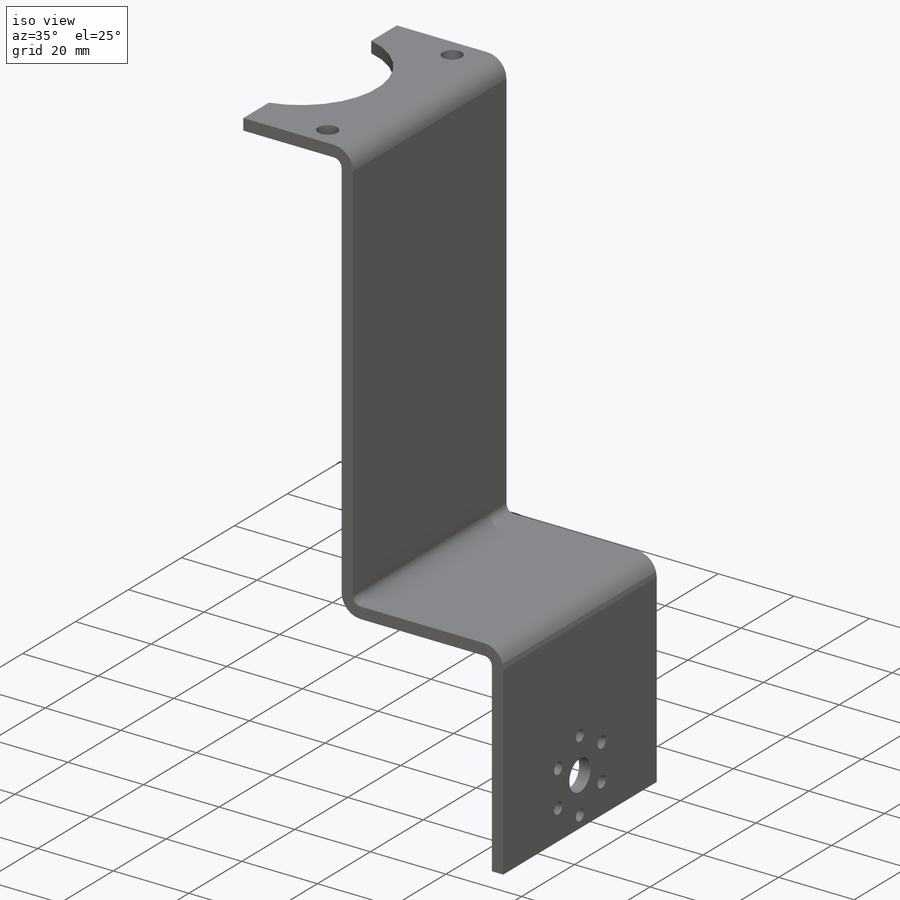
[diagram: iso view]
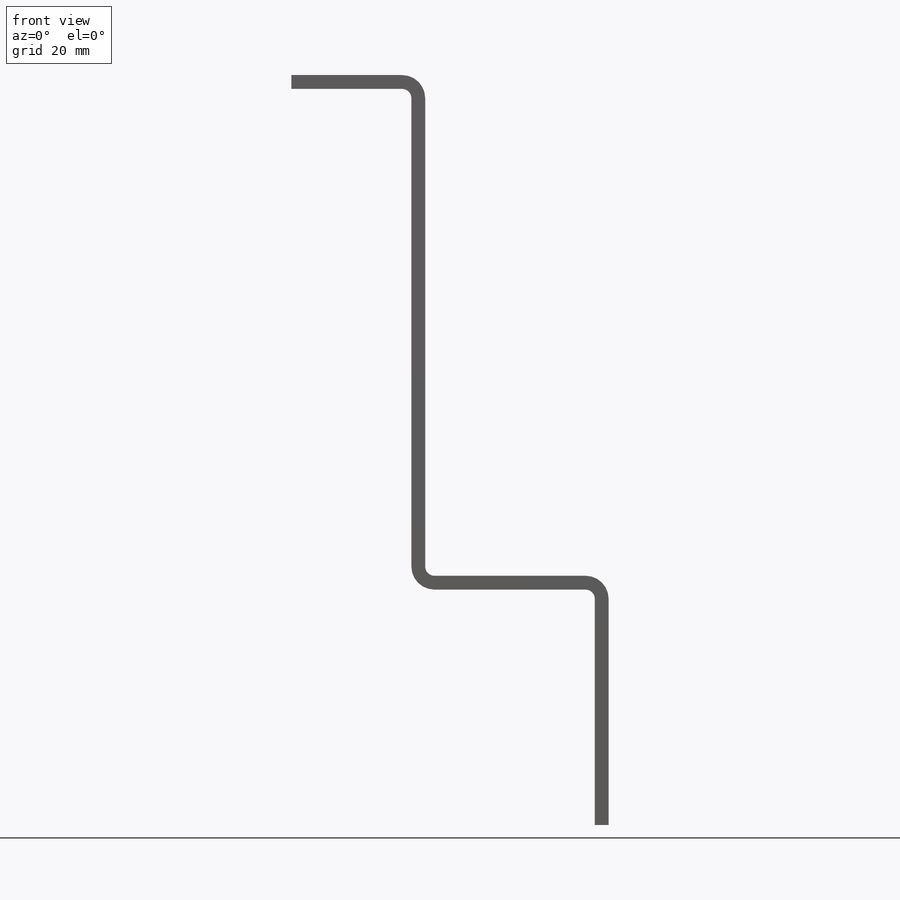
[diagram: front view]
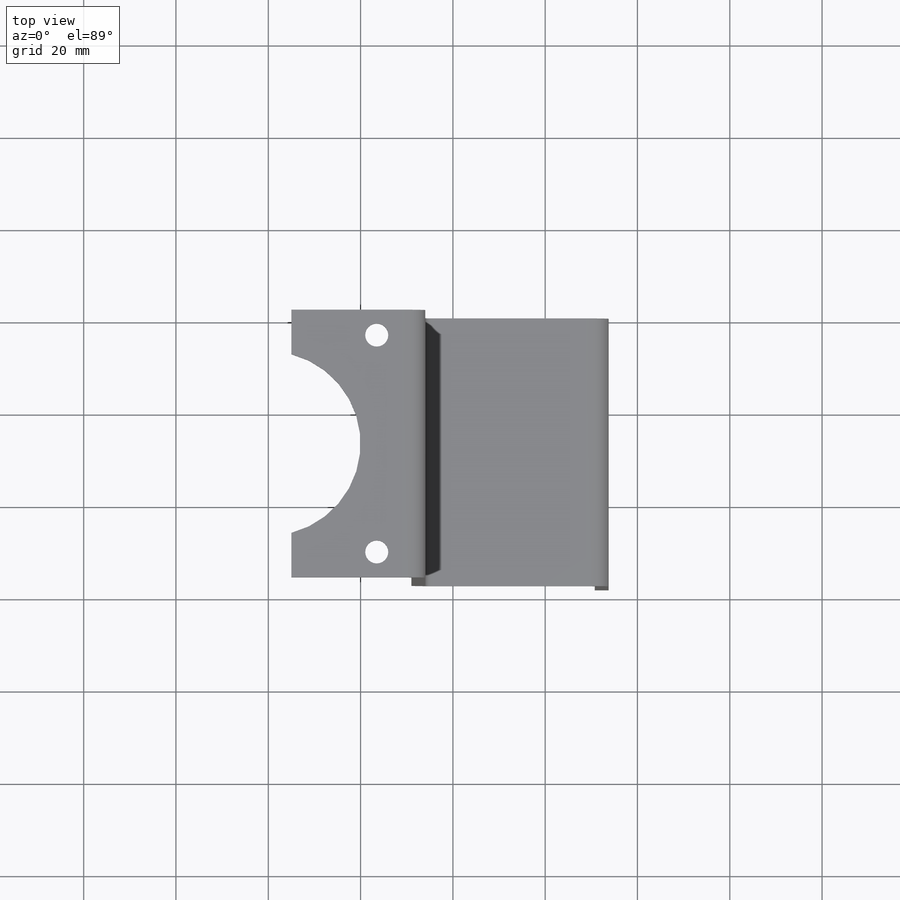
[diagram: top view]
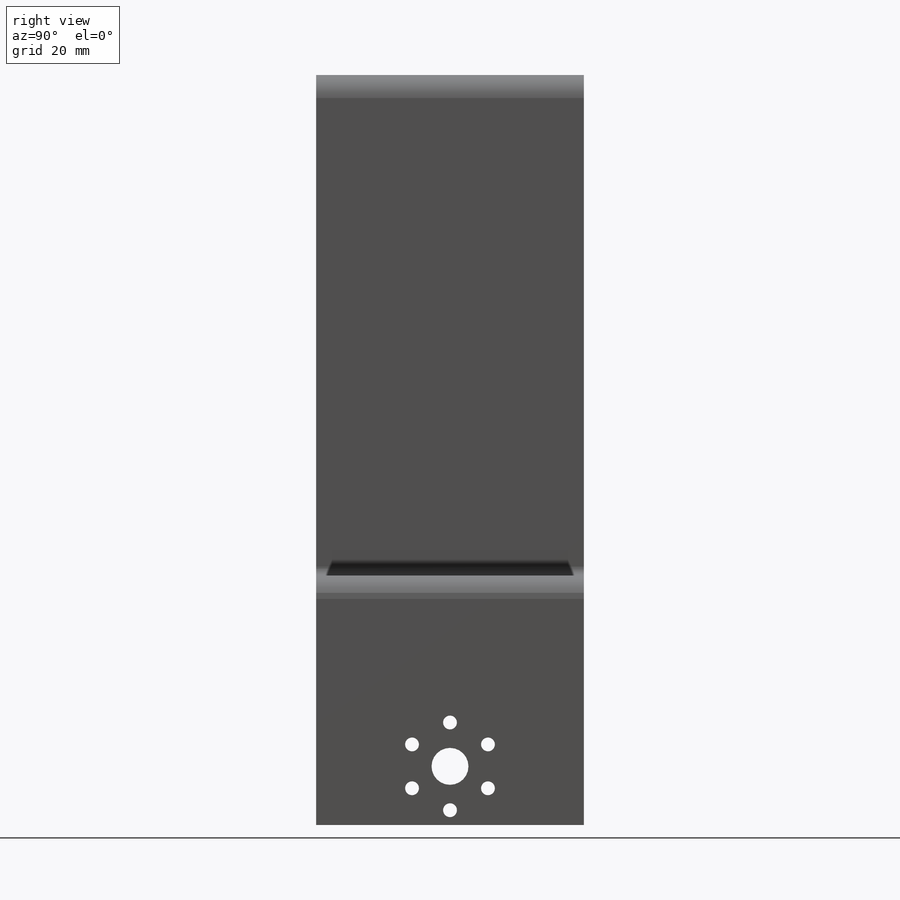
[diagram: right view]
SOLIDWORKS PART (.sldprt)
format: sldprt  version: not decoded by parser v0  size: 603,648 bytes
history: native  units: mm
features: sketch x12, cut_extrude x3, sheet_metal_op x3, material x1, extrude x1 + 3 further entries (+12 scaffold rows collapsed; 5 parser-record rows omitted)
feature tree (40):
  scaffold x12  (default folders/planes/origin — collapsed)
  material  "1060 Alloy"
  sketch  "Sketch2"  dims[D1=34.0mm D2=108.5mm D3=39.75mm D4=54.0mm D6=3.0mm D5=3.0mm]
  extrude  "Boss-Extrude1"  Depth=58mm
  sketch  "Sketch3"  dims[c1.D1=20.0mm c1.D4=5.0mm c1.D2=10.5mm c1.D3=5.5mm c2.D4=~5.763029mm]
  cut_extrude  "Cut-Extrude1"  Depth=58mm SharpBend2=0 SharpBend3=0
  parser-record x5  (decoder bookkeeping rows leaked as tree rows — omitted from the tree; the rows remain in map.json)
  sketch  "Sketch4"  dims[c1.D2=8.0mm c1.D3=19.0mm c1.D4=3.0mm c1.D1=12.7mm c2.D2=~2.344913mm c2.D5=6.0]
  cut_extrude  "Cut-Extrude2"  Depth=10mm
  sketch  "Sketch5"  dims[c1.D1=8.0mm c1.D2=~9.191053mm c2.D1=3.0mm c2.D2=8.0mm c3.D1=3.0mm c3.D2=5.0mm]
  cut_extrude  "Cut-Extrude4"  Depth=71mm
  sketch  "Bend-Lines1"
  sketch  "Bounding-Box1"
  sheet_metal_op  "Sheet-Metal(3)"
  "Flat-Pattern(3)"
  sketch  "Bend-Lines2"
  sketch  "Bounding-Box2"
  sheet_metal_op  "Sheet-Metal(4)"
  "Flat-Pattern(3)"
  sketch  "Bend-Lines3"
  sketch  "Bounding-Box3"
  sheet_metal_op  "Sheet-Metal(6)"
  "Flat-Pattern(3)"
  sketch  "Bend-Lines5"
  sketch  "Bounding-Box5"
decode coverage: 8 of 19 modeling features carry decoded parameters; 3 rows unclassified (native names shown)
note: ~ marks probable driven/reference dimensions
note: suppression state not decoded; provenance and decode notes live in map.json
